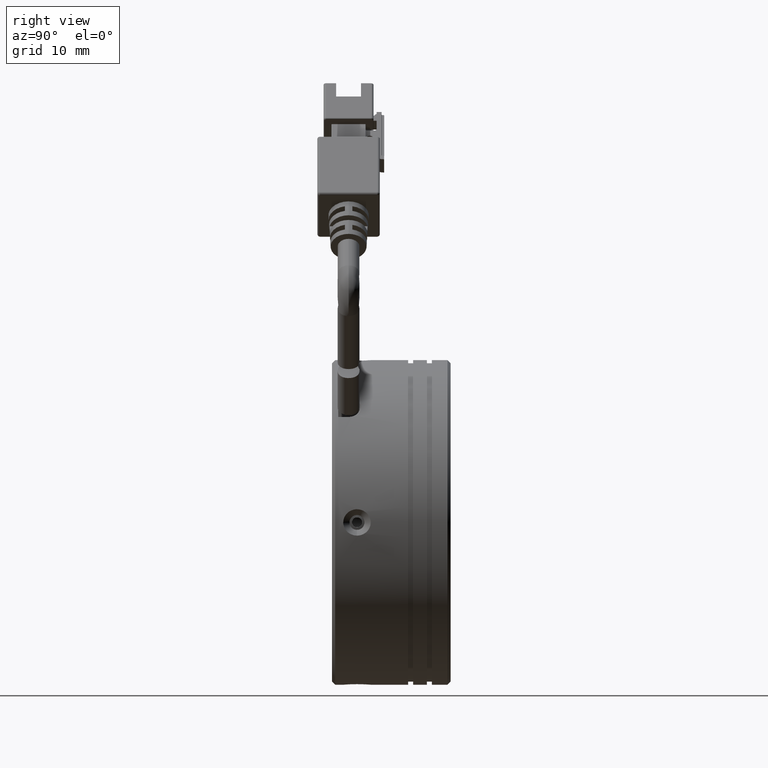
[diagram: clean part render]
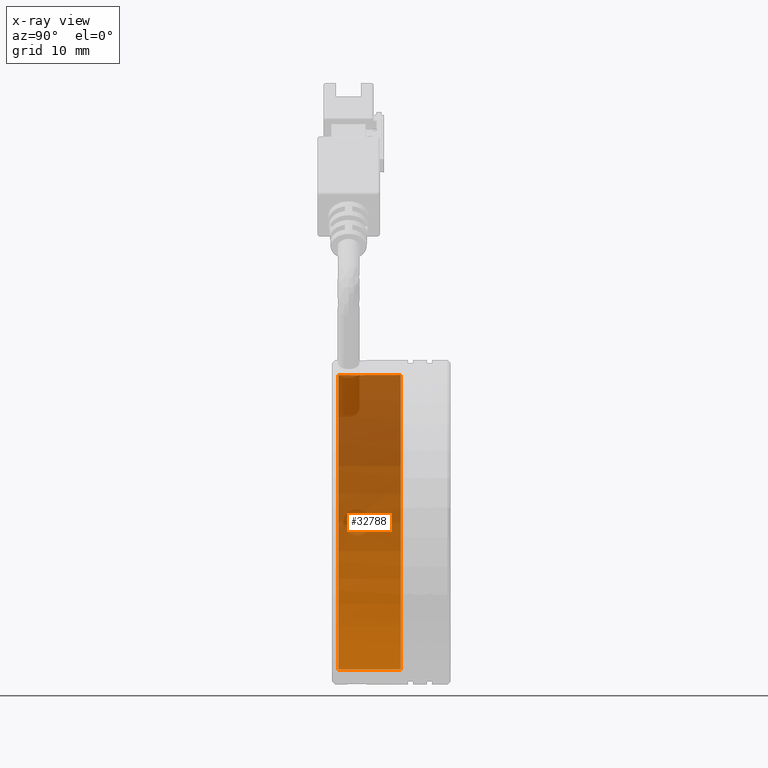
[diagram: x-ray — body ghosted, one internal face saturated and labeled with its STEP entity id]
A machine part, right view, then the same camera in x-ray: the body is ghosted and one INTERNAL B-rep face — a face not visible from any outside direction — is saturated and labeled: STEP entity #32788.
In plain terms, the highlighted cylindrical surface (partial cylindrical patch) has radius 23.6 mm, axis along (-0, -1, -0).
Its self-contained STEP definition (entity closure, byte-faithful):
#527 = DIRECTION ( 'NONE',  ( -0.0000000000000000000, -1.000000000000000000, -0.0000000000000000000 ) ) ;
#863 = ORIENTED_EDGE ( 'NONE', *, *, #5580, .T. ) ;
#1221 = CARTESIAN_POINT ( 'NONE',  ( -1.001730018525380600, -3.219923829761801100, -23.60000000000000500 ) ) ;
#1526 = CARTESIAN_POINT ( 'NONE',  ( -24.41270825699534800, -2.019923829761832000, -1.200000000000080600 ) ) ;
#1624 = AXIS2_PLACEMENT_3D ( 'NONE', #13896, #38947, #17488 ) ;
#1669 = CARTESIAN_POINT ( 'NONE',  ( -0.8432364767453765000, 4.980076170238170600, 0.0000000000000000000 ) ) ;
#1721 = DIRECTION ( 'NONE',  ( -0.0000000000000000000, -1.000000000000000000, -0.0000000000000000000 ) ) ;
#1820 = ORIENTED_EDGE ( 'NONE', *, *, #32526, .F. ) ;
#1883 = CARTESIAN_POINT ( 'NONE',  ( -0.8432364767453736100, -21.81214605198405500, 23.59999999999999800 ) ) ;
#2411 = CARTESIAN_POINT ( 'NONE',  ( -24.41435423061420100, -2.334085950753630900, -1.168778408369411000 ) ) ;
#2575 = CARTESIAN_POINT ( 'NONE',  ( -24.44324190933849300, -3.220030670784799200, 0.1557079376987346200 ) ) ;
#3088 = CARTESIAN_POINT ( 'NONE',  ( -2.043236476745371900, -2.019923829761832000, 23.56947178024997300 ) ) ;
#3191 = CARTESIAN_POINT ( 'NONE',  ( -0.8432364767453736100, -3.219923829761827300, 23.59999999999999800 ) ) ;
#3264 = CARTESIAN_POINT ( 'NONE',  ( -24.44157246092626700, -0.8515759734985368600, 0.3152599686546836400 ) ) ;
#3297 = EDGE_CURVE ( 'NONE', #25365, #24933, #7291, .T. ) ;
#3398 = ORIENTED_EDGE ( 'NONE', *, *, #22630, .T. ) ;
#3617 = CARTESIAN_POINT ( 'NONE',  ( -0.8432364767453765000, -0.8199238297618384200, -23.59999999999999800 ) ) ;
#4714 = CARTESIAN_POINT ( 'NONE',  ( -2.043236476745188500, -2.019923829761832000, -23.56947178024998400 ) ) ;
#5157 = CARTESIAN_POINT ( 'NONE',  ( -0.8432364767453765000, -21.81214605198405500, 0.0000000000000000000 ) ) ;
#5329 = DIRECTION ( 'NONE',  ( 0.0000000000000000000, 0.0000000000000000000, -1.000000000000000000 ) ) ;
#5466 = ORIENTED_EDGE ( 'NONE', *, *, #22757, .F. ) ;
#5580 = EDGE_CURVE ( 'NONE', #11252, #27092, #32568, .T. ) ;
#5581 = CARTESIAN_POINT ( 'NONE',  ( -0.8432364767453765000, -5.019923829761831200, -23.59999999999999800 ) ) ;
#6029 = ORIENTED_EDGE ( 'NONE', *, *, #18049, .F. ) ;
#6245 = CARTESIAN_POINT ( 'NONE',  ( -24.43596405977474400, -3.068919432468319100, 0.6035920195088654300 ) ) ;
#6878 = CARTESIAN_POINT ( 'NONE',  ( -24.44324190933849600, -0.8198169887388664400, -0.1557079376989027000 ) ) ;
#7247 = CARTESIAN_POINT ( 'NONE',  ( -1.157246261397692800, -0.8511140777613299700, -23.59835807141496400 ) ) ;
#7291 = LINE ( 'NONE', #1883, #16901 ) ;
#8323 = CARTESIAN_POINT ( 'NONE',  ( -2.043236476745188900, -2.178416414254122900, -23.56947178024998000 ) ) ;
#8414 = LINE ( 'NONE', #19688, #26391 ) ;
#9855 = CARTESIAN_POINT ( 'NONE',  ( -24.42396984322875400, -2.757145182925909000, 0.9599956775297957500 ) ) ;
#10361 = CARTESIAN_POINT ( 'NONE',  ( -24.41270825699535900, -2.019923829761832000, 1.199999999999915400 ) ) ;
#10530 = CARTESIAN_POINT ( 'NONE',  ( -24.43596405977474000, -0.9709282270553423200, -0.6035920195090254100 ) ) ;
#10715 = EDGE_CURVE ( 'NONE', #25365, #23180, #39052, .T. ) ;
#10876 = CARTESIAN_POINT ( 'NONE',  ( -1.580796743012846700, -1.060506129409402500, -23.58873180317176800 ) ) ;
#11252 = VERTEX_POINT ( 'NONE', #45394 ) ;
#11811 = EDGE_CURVE ( 'NONE', #43623, #39841, #21792, .T. ) ;
#12467 = CARTESIAN_POINT ( 'NONE',  ( -0.8432364767453736100, -5.019923829761831200, 23.59999999999999800 ) ) ;
#12503 = B_SPLINE_CURVE_WITH_KNOTS ( 'NONE', 3,
 ( #3617, #25164, #7247, #32366, #10876, #35937, #14518, #39591, #18115, #43218 ),
 .UNSPECIFIED., .F., .F.,
 ( 4, 2, 2, 2, 4 ),
 ( 0.001874892602522634000, 0.002343616699044423200, 0.002812340795566212300, 0.003281064892088001300, 0.003749788988609790400 ),
 .UNSPECIFIED. ) ;
#13350 = CARTESIAN_POINT ( 'NONE',  ( -24.41270825699534800, -2.019923829761832000, -1.200000000000080600 ) ) ;
#13519 = CARTESIAN_POINT ( 'NONE',  ( -24.41435779037914600, -2.334381946304344300, 1.168710811287322100 ) ) ;
#13854 = CARTESIAN_POINT ( 'NONE',  ( -1.157246261397724800, -0.8511140777612862300, 23.59835807141496700 ) ) ;
#13896 = CARTESIAN_POINT ( 'NONE',  ( -0.8432364767453765000, -5.019923829761831200, 0.0000000000000000000 ) ) ;
#13938 = CARTESIAN_POINT ( 'NONE',  ( -2.012046225754328800, -2.333933601142113000, 23.57111606049467400 ) ) ;
#14159 = CARTESIAN_POINT ( 'NONE',  ( -24.42396984322875400, -1.282702476597746400, -0.9599956775299515200 ) ) ;
#14203 = LINE ( 'NONE', #40001, #32132 ) ;
#14518 = CARTESIAN_POINT ( 'NONE',  ( -1.891553398895245100, -1.415412422757610400, -23.57678156965979000 ) ) ;
#14776 = CARTESIAN_POINT ( 'NONE',  ( -2.043236476745371900, -2.019923829761832000, 23.56947178024997300 ) ) ;
#15604 = CARTESIAN_POINT ( 'NONE',  ( -1.891704058667388600, -2.624435281728529000, -23.57677552797129600 ) ) ;
#15968 = CARTESIAN_POINT ( 'NONE',  ( -0.8432364767453736100, -0.8199238297618366400, 23.59999999999999800 ) ) ;
#16901 = VECTOR ( 'NONE', #1721, 1000.000000000000000 ) ;
#16975 = CARTESIAN_POINT ( 'NONE',  ( -24.42399586663525200, -2.757790312193932900, -0.9591937952086525600 ) ) ;
#17119 = CARTESIAN_POINT ( 'NONE',  ( -24.41270825699535900, -2.019923829761832000, 1.199999999999915400 ) ) ;
#17300 = CARTESIAN_POINT ( 'NONE',  ( -0.8432364767453736100, -0.8199238297618366400, 23.59999999999999800 ) ) ;
#17449 = CARTESIAN_POINT ( 'NONE',  ( -1.580796743012942600, -1.060506129409332100, 23.58873180317176500 ) ) ;
#17488 = DIRECTION ( 'NONE',  ( 0.0000000000000000000, 0.0000000000000000000, -1.000000000000000000 ) ) ;
#17540 = CARTESIAN_POINT ( 'NONE',  ( -1.802654267484277400, -2.757483976093404900, 23.58074984862322400 ) ) ;
#17607 = CARTESIAN_POINT ( 'NONE',  ( -24.41435423061421200, -1.705761708770036700, 1.168778408369247600 ) ) ;
#17755 = CARTESIAN_POINT ( 'NONE',  ( -24.41435779037913900, -1.705465713219329600, -1.168710811287491100 ) ) ;
#18049 = EDGE_CURVE ( 'NONE', #25167, #25330, #44970, .T. ) ;
#18078 = ORIENTED_EDGE ( 'NONE', *, *, #22643, .T. ) ;
#18115 = CARTESIAN_POINT ( 'NONE',  ( -2.043236476745188900, -1.861431566627940000, -23.56947178024998400 ) ) ;
#18491 = CARTESIAN_POINT ( 'NONE',  ( -0.8432364767453765000, 4.980076170238170600, -23.59999999999999800 ) ) ;
#19194 = CARTESIAN_POINT ( 'NONE',  ( -1.581474895547215800, -2.978819811423894400, -23.58871022242496100 ) ) ;
#19647 = DIRECTION ( 'NONE',  ( 0.0000000000000000000, 0.0000000000000000000, -1.000000000000000000 ) ) ;
#19688 = CARTESIAN_POINT ( 'NONE',  ( -0.8432364767453765000, -21.81214605198405500, -23.59999999999999800 ) ) ;
#19721 = B_SPLINE_CURVE_WITH_KNOTS ( 'NONE', 3,
 ( #10361, #31850, #17607, #42717, #21205, #46291, #24803, #3264, #28358, #6878, #32014, #10530, #35589, #14159, #39230, #17755, #42857, #21364 ),
 .UNSPECIFIED., .F., .F.,
 ( 4, 2, 2, 2, 2, 2, 2, 2, 4 ),
 ( 0.0000000000000000000, 0.0004689458481993737100, 0.0009378916963987474200, 0.001406837544598121100, 0.001875783392797494800, 0.002344729240996868600, 0.002813675089196242300, 0.003282620937395616000, 0.003751566785594989700 ),
 .UNSPECIFIED. ) ;
#19836 = DIRECTION ( 'NONE',  ( -0.0000000000000000000, -1.000000000000000000, -0.0000000000000000000 ) ) ;
#20473 = EDGE_CURVE ( 'NONE', #24148, #11252, #27508, .T. ) ;
#20552 = CARTESIAN_POINT ( 'NONE',  ( -24.43594803322538700, -3.068548680799536100, -0.6039962606320449200 ) ) ;
#20939 = VERTEX_POINT ( 'NONE', #41994 ) ;
#21056 = CARTESIAN_POINT ( 'NONE',  ( -1.891553398895395900, -1.415412422757550600, 23.57678156965978600 ) ) ;
#21145 = CARTESIAN_POINT ( 'NONE',  ( -1.447747979166847300, -3.068240703766772700, 23.59269773816365400 ) ) ;
#21205 = CARTESIAN_POINT ( 'NONE',  ( -24.42399586663525600, -1.282057347329728800, 0.9591937952084850200 ) ) ;
#21364 = CARTESIAN_POINT ( 'NONE',  ( -24.41270825699534800, -2.019923829761832000, -1.200000000000080600 ) ) ;
#21792 = B_SPLINE_CURVE_WITH_KNOTS ( 'NONE', 3,
 ( #13350, #27561, #2411, #38398, #16975, #42073, #20552, #45635, #24174, #2575, #27713, #6245, #31356, #9855, #34942, #13519, #38562, #17119 ),
 .UNSPECIFIED., .F., .F.,
 ( 4, 2, 2, 2, 2, 2, 2, 2, 4 ),
 ( 0.003751566785594989700, 0.004220512956037755100, 0.004689459126480519600, 0.005158405296923285000, 0.005627351467366049600, 0.006096297637808815000, 0.006565243808251580400, 0.007034189978694345800, 0.007503136149137110300 ),
 .UNSPECIFIED. ) ;
#21974 = AXIS2_PLACEMENT_3D ( 'NONE', #1669, #26816, #5329 ) ;
#22501 = CARTESIAN_POINT ( 'NONE',  ( -0.8432364767453736100, 4.980076170238170600, 23.59999999999999800 ) ) ;
#22630 = EDGE_CURVE ( 'NONE', #24933, #24148, #29858, .T. ) ;
#22643 = EDGE_CURVE ( 'NONE', #39841, #43623, #19721, .T. ) ;
#22757 = EDGE_CURVE ( 'NONE', #25330, #36643, #14203, .T. ) ;
#22795 = CARTESIAN_POINT ( 'NONE',  ( -1.159215122928722200, -3.188067622297395600, -23.59832575027449400 ) ) ;
#23110 = DIRECTION ( 'NONE',  ( -0.0000000000000000000, -1.000000000000000000, -0.0000000000000000000 ) ) ;
#23148 = ORIENTED_EDGE ( 'NONE', *, *, #10715, .F. ) ;
#23180 = VERTEX_POINT ( 'NONE', #18491 ) ;
#24148 = VERTEX_POINT ( 'NONE', #14776 ) ;
#24174 = CARTESIAN_POINT ( 'NONE',  ( -24.44323101557521100, -3.219816426723565200, -0.1573503971682221900 ) ) ;
#24669 = CARTESIAN_POINT ( 'NONE',  ( -2.043236476745295500, -1.861431566627348900, 23.56947178024997700 ) ) ;
#24744 = CARTESIAN_POINT ( 'NONE',  ( -1.001728736124516800, -3.219923829761829100, 23.59999999999999800 ) ) ;
#24803 = CARTESIAN_POINT ( 'NONE',  ( -24.43594803322539700, -0.9712989787241236300, 0.6039962606318725100 ) ) ;
#24933 = VERTEX_POINT ( 'NONE', #15968 ) ;
#25121 = CARTESIAN_POINT ( 'NONE',  ( -24.41270825699535900, -2.019923829761832000, 1.199999999999915400 ) ) ;
#25164 = CARTESIAN_POINT ( 'NONE',  ( -1.001729055964604800, -0.8199238297618634000, -23.59999999999999100 ) ) ;
#25167 = VERTEX_POINT ( 'NONE', #46381 ) ;
#25302 = EDGE_LOOP ( 'NONE', ( #18078, #39992 ) ) ;
#25330 = VERTEX_POINT ( 'NONE', #36706 ) ;
#25365 = VERTEX_POINT ( 'NONE', #22501 ) ;
#25580 = EDGE_CURVE ( 'NONE', #27092, #36643, #45976, .T. ) ;
#26370 = CARTESIAN_POINT ( 'NONE',  ( -0.8432364767453765000, -3.219923829761825600, -23.59999999999999800 ) ) ;
#26391 = VECTOR ( 'NONE', #19836, 1000.000000000000000 ) ;
#26771 = ORIENTED_EDGE ( 'NONE', *, *, #20473, .T. ) ;
#26816 = DIRECTION ( 'NONE',  ( -0.0000000000000000000, -1.000000000000000000, -0.0000000000000000000 ) ) ;
#27092 = VERTEX_POINT ( 'NONE', #12467 ) ;
#27508 = B_SPLINE_CURVE_WITH_KNOTS ( 'NONE', 3,
 ( #31782, #46072, #13938, #38996, #17540, #42660, #21145, #46215, #24744, #3191 ),
 .UNSPECIFIED., .F., .F.,
 ( 4, 2, 2, 2, 4 ),
 ( 0.001874892633287608300, 0.002343616741991071200, 0.002812340850694533900, 0.003281064959397996600, 0.003749789068101459300 ),
 .UNSPECIFIED. ) ;
#27561 = CARTESIAN_POINT ( 'NONE',  ( -24.41270825699535200, -2.178491716515050100, -1.200000000000157400 ) ) ;
#27713 = CARTESIAN_POINT ( 'NONE',  ( -24.44160815473928500, -3.189001594586605000, 0.3130052400594893800 ) ) ;
#28358 = CARTESIAN_POINT ( 'NONE',  ( -24.44323101557521500, -0.8200312328000981500, 0.1573503971680454400 ) ) ;
#28375 = DIRECTION ( 'NONE',  ( -0.0000000000000000000, -1.000000000000000000, -0.0000000000000000000 ) ) ;
#28805 = FACE_BOUND ( 'NONE', #25302, .T. ) ;
#29827 = ORIENTED_EDGE ( 'NONE', *, *, #3297, .T. ) ;
#29858 = B_SPLINE_CURVE_WITH_KNOTS ( 'NONE', 3,
 ( #17300, #38753, #13854, #38901, #17449, #42570, #21056, #46132, #24669, #3088 ),
 .UNSPECIFIED., .F., .F.,
 ( 4, 2, 2, 2, 4 ),
 ( -5.421010862427522200E-020, 0.0004687231583219020200, 0.0009374463166438040400, 0.001406169474965706200, 0.001874892633287608300 ),
 .UNSPECIFIED. ) ;
#31356 = CARTESIAN_POINT ( 'NONE',  ( -24.43202870784421100, -2.980979574412863500, 0.7358388954861324600 ) ) ;
#31429 = VECTOR ( 'NONE', #28375, 1000.000000000000000 ) ;
#31782 = CARTESIAN_POINT ( 'NONE',  ( -2.043236476745371900, -2.019923829761832000, 23.56947178024997300 ) ) ;
#31850 = CARTESIAN_POINT ( 'NONE',  ( -24.41270825699535900, -1.861355943008033500, 1.199999999999915100 ) ) ;
#32014 = CARTESIAN_POINT ( 'NONE',  ( -24.44160815473927800, -0.8508460649370627200, -0.3130052400596656800 ) ) ;
#32132 = VECTOR ( 'NONE', #527, 1000.000000000000000 ) ;
#32366 = CARTESIAN_POINT ( 'NONE',  ( -1.447748026053364200, -0.9714562966536196600, -23.59270377888737300 ) ) ;
#32526 = EDGE_CURVE ( 'NONE', #20939, #25167, #12503, .T. ) ;
#32568 = LINE ( 'NONE', #42867, #31429 ) ;
#32788 = ADVANCED_FACE ( 'NONE', ( #28805, #38384 ), #33859, .F. ) ;
#33834 = EDGE_CURVE ( 'NONE', #23180, #20939, #8414, .T. ) ;
#33859 = CYLINDRICAL_SURFACE ( 'NONE', #35075, 23.59999999999999800 ) ;
#34785 = ORIENTED_EDGE ( 'NONE', *, *, #33834, .F. ) ;
#34942 = CARTESIAN_POINT ( 'NONE',  ( -24.42002881385663200, -2.625118701094709000, 1.048097340513627100 ) ) ;
#35075 = AXIS2_PLACEMENT_3D ( 'NONE', #5157, #23110, #19647 ) ;
#35589 = CARTESIAN_POINT ( 'NONE',  ( -24.43202870784420000, -1.058868085110809700, -0.7358388954863058800 ) ) ;
#35937 = CARTESIAN_POINT ( 'NONE',  ( -1.802132564627709500, -1.281685546570041200, -23.58077143608723200 ) ) ;
#36643 = VERTEX_POINT ( 'NONE', #5581 ) ;
#36706 = CARTESIAN_POINT ( 'NONE',  ( -0.8432364767453765000, -3.219923829761825600, -23.59999999999999800 ) ) ;
#37025 = CARTESIAN_POINT ( 'NONE',  ( -2.012046225754153800, -2.333933601142074800, -23.57111606049467400 ) ) ;
#38384 = FACE_OUTER_BOUND ( 'NONE', #43837, .T. ) ;
#38398 = CARTESIAN_POINT ( 'NONE',  ( -24.42001837946170900, -2.624696977122403100, -1.048327356491362000 ) ) ;
#38562 = CARTESIAN_POINT ( 'NONE',  ( -24.41270825699535900, -2.178491825478006100, 1.199999999999915400 ) ) ;
#38753 = CARTESIAN_POINT ( 'NONE',  ( -1.001729055964617000, -0.8199238297618355300, 23.59999999999999800 ) ) ;
#38901 = CARTESIAN_POINT ( 'NONE',  ( -1.447748026053437000, -0.9714562966535530400, 23.59270377888736500 ) ) ;
#38947 = DIRECTION ( 'NONE',  ( -0.0000000000000000000, -1.000000000000000000, -0.0000000000000000000 ) ) ;
#38996 = CARTESIAN_POINT ( 'NONE',  ( -1.891704058667547300, -2.624435281728574800, 23.57677552797130000 ) ) ;
#39052 = CIRCLE ( 'NONE', #21974, 23.59999999999999800 ) ;
#39230 = CARTESIAN_POINT ( 'NONE',  ( -24.42002881385662900, -1.414728958428948900, -1.048097340513789700 ) ) ;
#39591 = CARTESIAN_POINT ( 'NONE',  ( -2.011380267493088500, -1.703945199785817000, -23.57114841574022500 ) ) ;
#39841 = VERTEX_POINT ( 'NONE', #25121 ) ;
#39992 = ORIENTED_EDGE ( 'NONE', *, *, #11811, .T. ) ;
#40001 = CARTESIAN_POINT ( 'NONE',  ( -0.8432364767453765000, -21.81214605198405500, -23.59999999999999800 ) ) ;
#40683 = CARTESIAN_POINT ( 'NONE',  ( -1.802654267484141300, -2.757483976093340500, -23.58074984862322100 ) ) ;
#41994 = CARTESIAN_POINT ( 'NONE',  ( -0.8432364767453765000, -0.8199238297618384200, -23.59999999999999800 ) ) ;
#42073 = CARTESIAN_POINT ( 'NONE',  ( -24.43195985023421500, -2.979144311713537900, -0.7378317895481320000 ) ) ;
#42570 = CARTESIAN_POINT ( 'NONE',  ( -1.802132564627843200, -1.281685546569973500, 23.58077143608722500 ) ) ;
#42660 = CARTESIAN_POINT ( 'NONE',  ( -1.581474895547319700, -2.978819811423958800, 23.58871022242495400 ) ) ;
#42717 = CARTESIAN_POINT ( 'NONE',  ( -24.42001837946170200, -1.415150682401247600, 1.048327356491190800 ) ) ;
#42857 = CARTESIAN_POINT ( 'NONE',  ( -24.41270825699535900, -1.861356051969755600, -1.200000000000004200 ) ) ;
#42867 = CARTESIAN_POINT ( 'NONE',  ( -0.8432364767453736100, -21.81214605198405500, 23.59999999999999800 ) ) ;
#43218 = CARTESIAN_POINT ( 'NONE',  ( -2.043236476745188500, -2.019923829761832000, -23.56947178024998400 ) ) ;
#43623 = VERTEX_POINT ( 'NONE', #1526 ) ;
#43837 = EDGE_LOOP ( 'NONE', ( #23148, #29827, #3398, #26771, #863, #46272, #5466, #6029, #1820, #34785 ) ) ;
#44286 = CARTESIAN_POINT ( 'NONE',  ( -1.447747979166769600, -3.068240703766708300, -23.59269773816366100 ) ) ;
#44970 = B_SPLINE_CURVE_WITH_KNOTS ( 'NONE', 3,
 ( #4714, #8323, #37025, #15604, #40683, #19194, #44286, #22795, #1221, #26370 ),
 .UNSPECIFIED., .F., .F.,
 ( 4, 2, 2, 2, 4 ),
 ( 0.003749788988609790400, 0.004218514035515038400, 0.004687239082420286900, 0.005155964129325536300, 0.005624689176230784700 ),
 .UNSPECIFIED. ) ;
#45394 = CARTESIAN_POINT ( 'NONE',  ( -0.8432364767453736100, -3.219923829761827300, 23.59999999999999800 ) ) ;
#45635 = CARTESIAN_POINT ( 'NONE',  ( -24.44157246092627400, -3.188271686025125000, -0.3152599686548571100 ) ) ;
#45976 = CIRCLE ( 'NONE', #1624, 23.59999999999999800 ) ;
#46072 = CARTESIAN_POINT ( 'NONE',  ( -2.043236476745448300, -2.178416414253563800, 23.56947178024996600 ) ) ;
#46132 = CARTESIAN_POINT ( 'NONE',  ( -2.011380267493263900, -1.703945199785779300, 23.57114841574021800 ) ) ;
#46215 = CARTESIAN_POINT ( 'NONE',  ( -1.159215122928757300, -3.188067622297440900, 23.59832575027449400 ) ) ;
#46272 = ORIENTED_EDGE ( 'NONE', *, *, #25580, .T. ) ;
#46291 = CARTESIAN_POINT ( 'NONE',  ( -24.43195985023421500, -1.060703347810118700, 0.7378317895479573600 ) ) ;
#46381 = CARTESIAN_POINT ( 'NONE',  ( -2.043236476745188500, -2.019923829761832000, -23.56947178024998400 ) ) ;